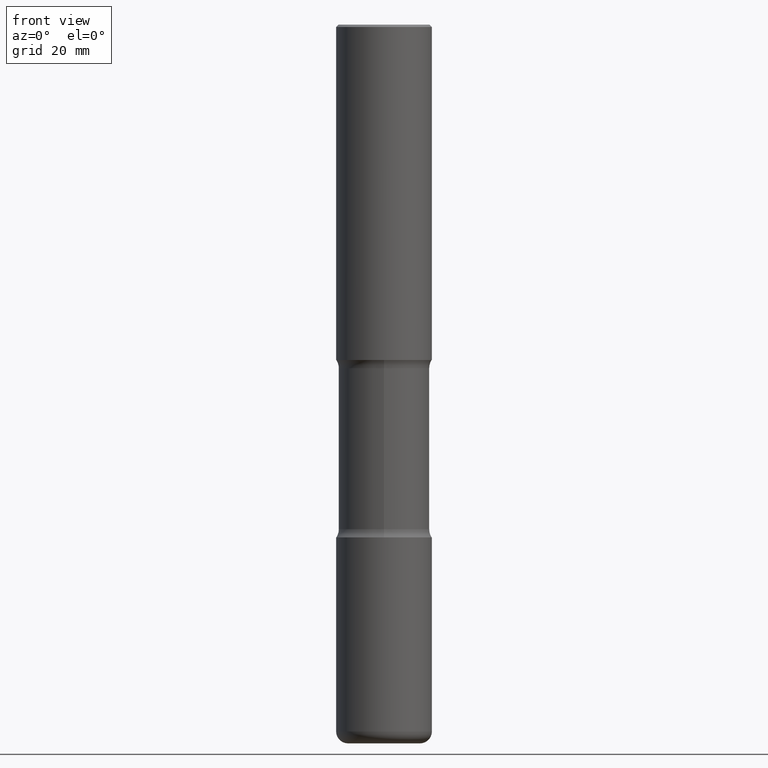
[diagram: clean part render]
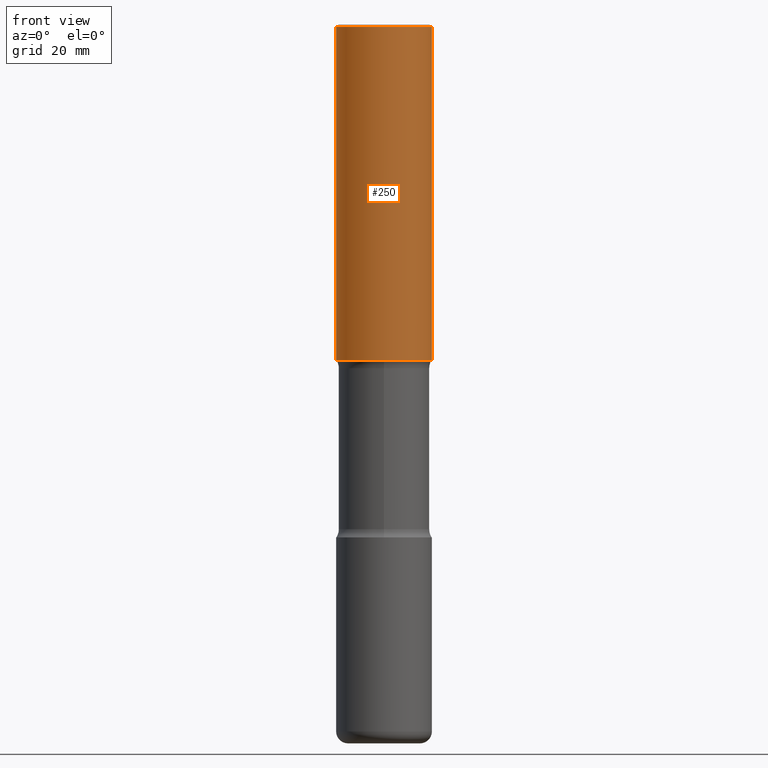
[diagram: same view with one face highlighted and labeled with its STEP entity id]
A machine part, front view. The second image highlights one B-rep face of the part: STEP entity #250.
In plain terms, the highlighted cylindrical surface (partial cylindrical patch) has radius 10 mm, axis along (-0, 0, 1).
Its self-contained STEP definition (entity closure, byte-faithful):
#11 = VECTOR ( 'NONE', #540, 39.37007874015748143 ) ;
#25 = CARTESIAN_POINT ( 'NONE',  ( -0.3937000000000002720, -2.048594773559823141E-15, -2.755899999999998240 ) ) ;
#29 = ORIENTED_EDGE ( 'NONE', *, *, #394, .F. ) ;
#35 = DIRECTION ( 'NONE',  ( -2.445468806185136597E-29, 3.491481338843145583E-15, 1.000000000000000000 ) ) ;
#44 = EDGE_LOOP ( 'NONE', ( #135, #88, #347, #29 ) ) ;
#45 = AXIS2_PLACEMENT_3D ( 'NONE', #401, #183, #460 ) ;
#52 = VERTEX_POINT ( 'NONE', #145 ) ;
#81 = DIRECTION ( 'NONE',  ( 1.000000000000000000, -6.982962677686266711E-15, 4.876176775795935793E-29 ) ) ;
#88 = ORIENTED_EDGE ( 'NONE', *, *, #127, .T. ) ;
#113 = VERTEX_POINT ( 'NONE', #358 ) ;
#127 = EDGE_CURVE ( 'NONE', #158, #137, #138, .T. ) ;
#135 = ORIENTED_EDGE ( 'NONE', *, *, #469, .F. ) ;
#137 = VERTEX_POINT ( 'NONE', #316 ) ;
#138 = CIRCLE ( 'NONE', #45, 0.3937000000000002164 ) ;
#145 = CARTESIAN_POINT ( 'NONE',  ( -0.3936999999999999389, 2.679362779428219524E-15, -0.02000000000000010103 ) ) ;
#158 = VERTEX_POINT ( 'NONE', #25 ) ;
#173 = AXIS2_PLACEMENT_3D ( 'NONE', #221, #265, #218 ) ;
#183 = DIRECTION ( 'NONE',  ( -2.445468806185136597E-29, 3.491481338843145583E-15, 1.000000000000000000 ) ) ;
#218 = DIRECTION ( 'NONE',  ( 1.000000000000000000, -6.982962677686266711E-15, 0.000000000000000000 ) ) ;
#221 = CARTESIAN_POINT ( 'NONE',  ( 4.890937612370298557E-31, -6.982962677686327354E-17, -0.02000000000000010103 ) ) ;
#241 = FACE_OUTER_BOUND ( 'NONE', #44, .T. ) ;
#250 = ADVANCED_FACE ( 'NONE', ( #241 ), #420, .T. ) ;
#265 = DIRECTION ( 'NONE',  ( -2.445468806185136597E-29, 3.491481338843145583E-15, 1.000000000000000000 ) ) ;
#277 = CARTESIAN_POINT ( 'NONE',  ( -0.3937000000000001054, 2.797406750687515181E-15, -1.936584745033357016E-29 ) ) ;
#281 = CARTESIAN_POINT ( 'NONE',  ( 0.3937000000000001054, -2.749192406205084005E-15, 1.919750796630860452E-29 ) ) ;
#316 = CARTESIAN_POINT ( 'NONE',  ( 0.3937000000000002164, -1.237136582792290287E-14, -2.755899999999998240 ) ) ;
#323 = LINE ( 'NONE', #277, #431 ) ;
#334 = CARTESIAN_POINT ( 'NONE',  ( 0.000000000000000000, 0.000000000000000000, 0.000000000000000000 ) ) ;
#347 = ORIENTED_EDGE ( 'NONE', *, *, #428, .T. ) ;
#358 = CARTESIAN_POINT ( 'NONE',  ( 0.3936999999999999389, -2.770807688499514945E-15, -0.02000000000000010103 ) ) ;
#365 = CIRCLE ( 'NONE', #173, 0.3936999999999999389 ) ;
#394 = EDGE_CURVE ( 'NONE', #52, #113, #365, .T. ) ;
#401 = CARTESIAN_POINT ( 'NONE',  ( 6.739467482965614869E-29, -9.622173421717819657E-15, -2.755899999999998240 ) ) ;
#420 = CYLINDRICAL_SURFACE ( 'NONE', #511, 0.3937000000000001054 ) ;
#428 = EDGE_CURVE ( 'NONE', #137, #113, #504, .T. ) ;
#431 = VECTOR ( 'NONE', #502, 39.37007874015748143 ) ;
#460 = DIRECTION ( 'NONE',  ( 1.000000000000000000, -6.982962677686265133E-15, 0.000000000000000000 ) ) ;
#469 = EDGE_CURVE ( 'NONE', #158, #52, #323, .T. ) ;
#502 = DIRECTION ( 'NONE',  ( -2.445468806185136877E-29, 3.491481338843145188E-15, 1.000000000000000000 ) ) ;
#504 = LINE ( 'NONE', #281, #11 ) ;
#511 = AXIS2_PLACEMENT_3D ( 'NONE', #334, #35, #81 ) ;
#540 = DIRECTION ( 'NONE',  ( -2.445468806185136877E-29, 3.491481338843145188E-15, 1.000000000000000000 ) ) ;